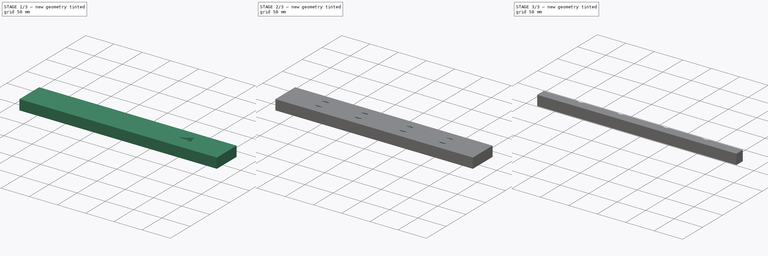
[diagram: build sequence overview — one tinted view per stage of 3, left to right]
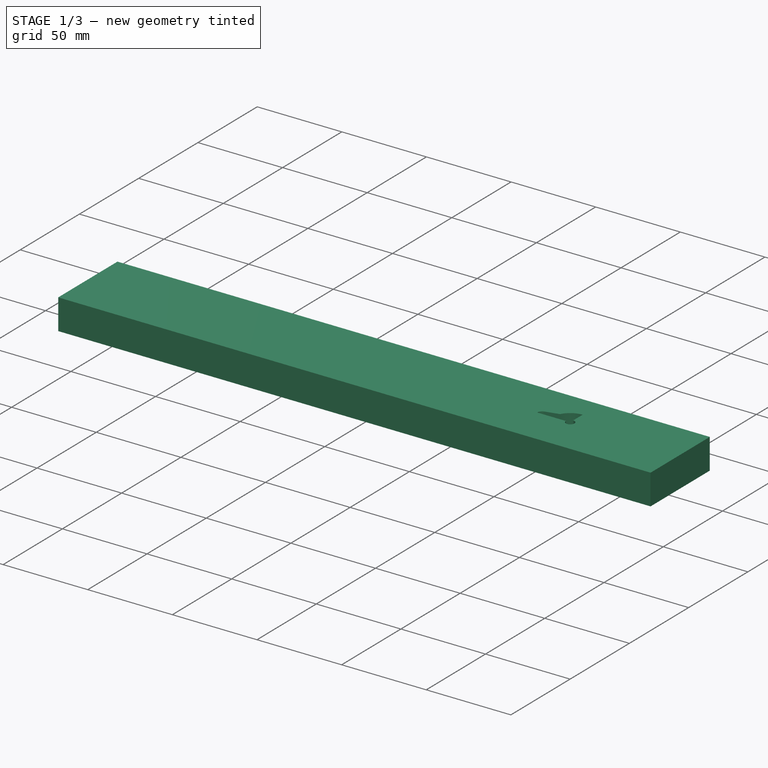
[diagram: stage 1 of 3 — iso view after this stage's code; geometry added in this stage tinted green]
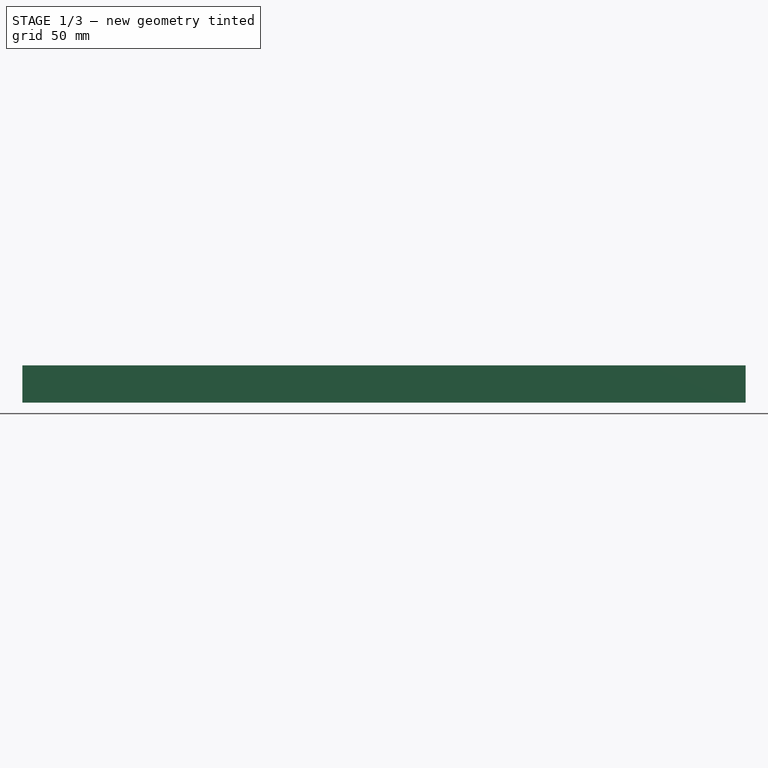
[diagram: stage 1 of 3 — front view after this stage's code; geometry added in this stage tinted green]
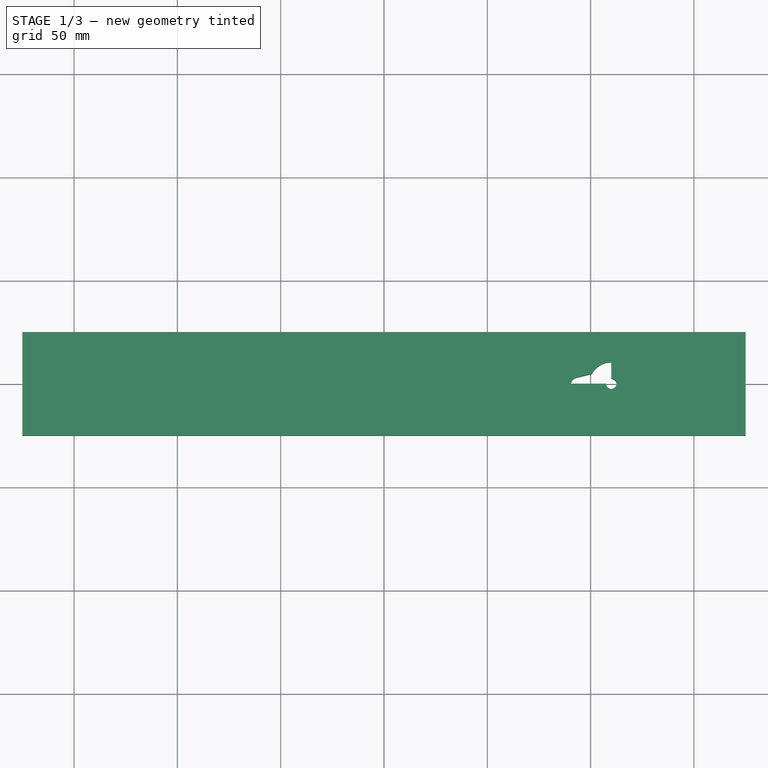
[diagram: stage 1 of 3 — top view after this stage's code; geometry added in this stage tinted green]
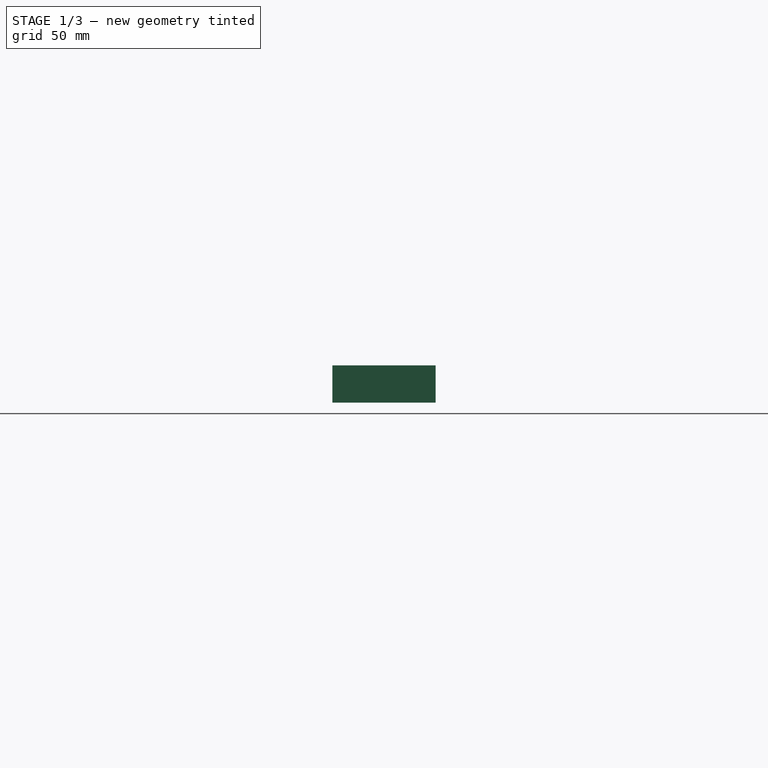
[diagram: stage 1 of 3 — right view after this stage's code; geometry added in this stage tinted green]
FCSTD DOCUMENT  (FreeCAD 0.21R31527 (Git))
Label: conductor3
License: All rights reserved
LicenseURL: http://en.wikipedia.org/wiki/All_rights_reserved
objects: PartDesign::Mirrored×7, PartDesign::CoordinateSystem×4, Sketcher::SketchObject×4, PartDesign::Plane×4, PartDesign::Pocket×4, App::DocumentObjectGroup×3, App::Link×3, PartDesign::SubShapeBinder×2, PartDesign::Pad×2, PartDesign::MultiTransform×2, PartDesign::Body×2, App::FeaturePython×1, App::Part×1, Spreadsheet::Sheet×1
note: 37 computed .brp shape members not serialized (recipe doc carries the construction recipe); baked Part::Feature solids carry a one-line shape summary decoded from their .brp
EXTERNAL_REF file=dropper.FCStd obj=Body
EXTERNAL_REF file=composit_full_size.FCStd obj=Spreadsheet002
EXTERNAL_REF file=composit_full_size.FCStd obj=Spreadsheet001

FEATURE [PartDesign::CoordinateSystem] LCS_Origin
  AttacherType = Attacher::AttachEngine3D
  MapMode = 2
  Support = -> [X_Axis]
FEATURE [App::DocumentObjectGroup] Constraints
FEATURE [App::FeaturePython] Variables  # WARN: FeaturePython — macro-defined, semantics opaque (R4)
  Type = App::PropertyContainer
FEATURE [App::DocumentObjectGroup] Configurations
FEATURE [PartDesign::CoordinateSystem] LCS_0
  AttacherType = Attacher::AttachEngine3D
  MapMode = 2
  Support = -> [X_Axis001]
FEATURE [PartDesign::SubShapeBinder] Binder
  BindCopyOnChange = 0
  BindMode = 0
  ClaimChildren = false
  Context = -> Body [Binder.]
  Fuse = false
  MakeFace = true
  OffsetFill = false
  OffsetIntersection = false
  OffsetJoinType = 0
  OffsetOpenResult = false
  PartialLoad = false
  Placement = pos=(110,-2.05e-14,2.05e-14) rot=(0,-1,0;3.14159rad)
  Relative = false
  Support = -> [<external dropper.FCStd>#Body[Pad.Sketch.]]
  _Version = 2
  expr: Placement = <<Sketch001>>.Placement
FEATURE [Sketcher::SketchObject] Sketch  label="Sketch_base_35mm"
  FullyConstrained = true
  MapMode = 5
  Support = -> [XY_Plane001]
  sketch-geometry (5):
    g0: LineSegment StartX=-175 StartY=-25 StartZ=0 EndX=-175 EndY=25 EndZ=0
    g1: LineSegment StartX=-175 StartY=25 StartZ=0 EndX=175 EndY=25 EndZ=0
    g2: LineSegment StartX=175 StartY=25 StartZ=0 EndX=175 EndY=-25 EndZ=0
    g3: LineSegment StartX=175 StartY=-25 StartZ=0 EndX=-175 EndY=-25 EndZ=0
    g4: GeomPoint X=0 Y=0 Z=0
  constraints (12):
    c: Coincident(g0,g1)
    c: Coincident(g1,g2)
    c: Coincident(g2,g3)
    c: Coincident(g3,g0)
    c: Horizontal(g1)
    c: Horizontal(g3)
    c: Vertical(g0)
    c: Vertical(g2)
    c: Symmetric(g1,g0,g4)
    c: Coincident(g4,g-1)
    c: DistanceX(g0,g1) = 350  'width'
    c: DistanceY(g2,g1) = 50  'length'
FEATURE [PartDesign::Plane] DatumPlane001
  AttachmentOffset = pos=(0,0,75) rot=(0,0,1;0rad)
  Length = 60
  MapMode = 5
  Placement = pos=(75,-1.67e-14,1.67e-14) rot=(0.57735,0.57735,0.57735;2.0944rad)
  ResizeMode = 0
  Support = -> [YZ_Plane001]
  Width = 60
  expr: .AttachmentOffset.Base.z = composit_full_size#<<main>>.modules_centres_dictance_x / 2
FEATURE [PartDesign::Plane] DatumPlane
  AttachmentOffset = pos=(0,0,35) rot=(0,0,1;0rad)
  Length = 60
  MapMode = 5
  Placement = pos=(110,-2.05e-14,2.05e-14) rot=(0.57735,0.57735,0.57735;2.0944rad)
  ResizeMode = 0
  Support = -> [DatumPlane001]
  Width = 60
  expr: .AttachmentOffset.Base.z = composit_full_size#<<dropper>>.distance_between_droppers2 / 2
FEATURE [Sketcher::SketchObject] Sketch001
  AttachmentOffset = pos=(0,0,0) rot=(0,0,1;-1.5708rad)
  FullyConstrained = true
  MapMode = 3
  Placement = pos=(110,-2.05e-14,2.05e-14) rot=(0,-1,0;3.14159rad)
  Support = -> [DatumPlane]
  sketch-geometry (1):
    g0: Circle CenterX=0 CenterY=0 CenterZ=0 NormalX=0 NormalY=0 NormalZ=1 AngleXU=0 Radius=2.5
  constraints (2):
    c: Coincident(g0,g-1)
    c: Diameter(g0) = 5
FEATURE [PartDesign::Pad] Pad
  Direction = (0,0,1)
  Length = 18
  Length2 = 10
  Profile = -> Sketch
  ReferenceAxis = -> Sketch [N_Axis]
  Type = 0
FEATURE [PartDesign::Pocket] Pocket
  BaseFeature = -> Pad
  Direction = (-1e-16,1e-16,1)
  Length = 5
  Length2 = 5
  Profile = -> Sketch001
  ReferenceAxis = -> Sketch001 [N_Axis]
  Type = 1
FEATURE [PartDesign::Pocket] Pocket001
  BaseFeature = -> Pocket
  Direction = (-1e-16,1e-16,1)
  Length = 5
  Length2 = 5
  Profile = -> Binder
  Type = 1
FEATURE [PartDesign::Body] Body001
  Group = -> [Sketch002,Pad001,DatumPlane002,DatumPlane003,Local_CS,Sketch003,Pocket002,Binder001,Pocket003,MultiTransform001,Mirrored004,Mirrored005,Mirrored006]
  Origin = -> Origin002
  Tip = -> MultiTransform001
FEATURE [App::DocumentObjectGroup] Parts
  Group = -> [Body,Body001]

RESOLVED EXTERNAL PARTS (link-assembly join: the EXTERNAL_REF files above that resolve inside this repo's crawl, each included once):
---- part composit_full_size.FCStd = doc fcstd_9694d161bcfa (149173 chars; too large to inline — full recipe in that document) ----
---- part dropper.FCStd = doc fcstd_03601a3bb068 ----
FCSTD DOCUMENT  (FreeCAD 1.1R38827 (Git))
Label: dropper
License: All rights reserved
LicenseURL: http://en.wikipedia.org/wiki/All_rights_reserved
objects: Sketcher::SketchObject×9, Part::FeaturePython×4, PartDesign::Revolution×3, PartDesign::Body×2, PartDesign::CoordinateSystem×1, Spreadsheet::Sheet×1, PartDesign::SubShapeBinder×1, PartDesign::Pad×1, PartDesign::Pocket×1, PartDesign::Groove×1, App::Part×1
note: 44 computed .brp shape members not serialized (recipe doc carries the construction recipe); baked Part::Feature solids carry a one-line shape summary decoded from their .brp

FEATURE [Sketcher::SketchObject] Sketch005
  ArcFitTolerance = 0
  AttachmentSupport = -> [YZ_Plane001]
  FullyConstrained = true
  MakeInternals = false
  MapMode = 5
  Placement = pos=(0,0,0) rot=(0.57735,0.57735,0.57735;2.0944rad)
  sketch-geometry (14):
    g0: LineSegment StartX=11.3 StartY=0 StartZ=0 EndX=11.3 EndY=1 EndZ=0
    g1: LineSegment StartX=11.3 StartY=1 StartZ=0 EndX=10.7 EndY=1 EndZ=0
    g2: LineSegment StartX=10.7 StartY=1 StartZ=0 EndX=10.7 EndY=9.9 EndZ=0
    g3: LineSegment StartX=10.7 StartY=9.9 StartZ=0 EndX=6.6 EndY=9.9 EndZ=0
    g4: LineSegment StartX=6.6 StartY=9.9 StartZ=0 EndX=6.6 EndY=3 EndZ=0
    g5: LineSegment StartX=6.6 StartY=3 StartZ=0 EndX=2.5 EndY=3 EndZ=0
    g6: LineSegment StartX=2.5 StartY=3 StartZ=0 EndX=2.5 EndY=20 EndZ=0
    g7: LineSegment StartX=2.5 StartY=20 StartZ=0 EndX=1.45 EndY=20 EndZ=0
    g8: LineSegment StartX=1.45 StartY=20 StartZ=0 EndX=1.45 EndY=2.5 EndZ=0
    g9: LineSegment StartX=1.45 StartY=2.5 StartZ=0 EndX=7 EndY=-0.6 EndZ=0
    g10: LineSegment StartX=7 StartY=-0.6 StartZ=0 EndX=7 EndY=8.85 EndZ=0
    g11: LineSegment StartX=7 StartY=8.85 StartZ=0 EndX=9.5 EndY=8.85 EndZ=0
    g12: LineSegment StartX=9.5 StartY=8.85 StartZ=0 EndX=9.5 EndY=0 EndZ=0
    g13: LineSegment StartX=9.5 StartY=0 StartZ=0 EndX=11.3 EndY=0 EndZ=0
  constraints (43):
    c: PointOnObject(g0,g-1)
    c: Vertical(g0)
    c: Coincident(g0,g1)
    c: Horizontal(g1)
    c: Coincident(g1,g2)
    c: Vertical(g2)
    c: Coincident(g2,g3)
    c: Horizontal(g3)
    c: Coincident(g3,g4)
    c: Vertical(g4)
    c: Coincident(g4,g5)
    c: Coincident(g5,g6)
    c: Vertical(g6)
    c: Coincident(g6,g7)
    c: Horizontal(g7)
    c: Coincident(g7,g8)
    c: Vertical(g8)
    c: Coincident(g8,g9)
    c: Coincident(g9,g10)
    c: Vertical(g10)
    c: Coincident(g10,g11)
    c: Horizontal(g11)
    c: Coincident(g11,g12)
    c: Vertical(g12)
    c: Coincident(g12,g13)
    c: Coincident(g13,g0)
    c: Horizontal(g13)
    c: DistanceX(g0) = 11.3  'outer_r'
    c: DistanceY(g0) = 1
    c: DistanceY(g2) = 9.9
    c: DistanceX(g1,g0) = 0.6
    c: DistanceX(g3,g2) = 4.1
    c: DistanceY(g4,g3) = 6.9
    c: DistanceX(g6) = 2.5
    c: DistanceX(g7) = 1.45
    c: DistanceY(g9,g3) = 10.5
    c: DistanceX(g12,g0) = 1.8
    c: DistanceY(g11) = 8.85
    c: DistanceX(g9) = 7
    c: DistanceY(g9,g6) = 20.6
    c: Horizontal(g5)
    c: DistanceY(g8,g5) = 0.5
    c: DistanceY(g7) = 20
FEATURE [PartDesign::Revolution] Revolution002
  Angle = 360
  Angle2 = 60
  Axis = (0,0,1)
  Base = (0,0,0)
  Placement = pos=(0,0,0) rot=(1,1,1;2.0944rad)
  Profile = -> Sketch005
  ReferenceAxis = -> Sketch005 [V_Axis]
  Reversed = true
  Suppressed = false
  Type = 0
FEATURE [Sketcher::SketchObject] Sketch006
  ArcFitTolerance = 0
  AttachmentSupport = -> [YZ_Plane001]
  FullyConstrained = true
  MakeInternals = false
  MapMode = 5
  Placement = pos=(0,0,0) rot=(0.57735,0.57735,0.57735;2.0944rad)
  expr: Constraints[27] = Sketch005.Constraints.outer_r
  expr: Constraints[28] = Sketch005.Constraints[28]
  expr: Constraints[29] = Sketch005.Constraints[29]
  expr: Constraints[30] = Sketch005.Constraints[30]
  expr: Constraints[31] = Sketch005.Constraints[31]
  expr: Constraints[32] = Sketch005.Constraints[32]
  expr: Constraints[33] = Sketch005.Constraints[33]
  expr: Constraints[34] = Sketch005.Constraints[34]
  expr: Constraints[35] = Sketch005.Constraints[35]
  expr: Constraints[36] = Sketch005.Constraints[36]
  expr: Constraints[37] = Sketch005.Constraints[37]
  expr: Constraints[38] = Sketch005.Constraints[38]
  expr: Constraints[39] = Sketch005.Constraints[39]
  expr: Constraints[41] = Sketch005.Constraints[41]
  expr: Constraints[69] = Sketch005.Constraints.outer_r
  expr: Constraints[70] = Sketch005.Constraints[28]
  expr: Constraints[71] = Sketch005.Constraints[29]
  expr: Constraints[72] = Sketch005.Constraints[30]
  expr: Constraints[73] = Sketch005.Constraints[31]
  expr: Constraints[74] = Sketch005.Constraints[32]
  expr: Constraints[75] = Sketch005.Constraints[33]
  expr: Constraints[76] = Sketch005.Constraints[34]
  expr: Constraints[77] = Sketch005.Constraints[35]
  expr: Constraints[78] = Sketch005.Constraints[36]
  expr: Constraints[79] = Sketch005.Constraints[37]
  expr: Constraints[80] = Sketch005.Constraints[38]
  expr: Constraints[81] = Sketch005.Constraints[39]
  expr: Constraints[83] = Sketch005.Constraints[41]
  sketch-geometry (32):
    g0: LineSegment [constr] StartX=11.3 StartY=0 StartZ=0 EndX=11.3 EndY=1 EndZ=0
    g1: LineSegment [constr] StartX=11.3 StartY=1 StartZ=0 EndX=10.7 EndY=1 EndZ=0
    g2: LineSegment [constr] StartX=10.7 StartY=1 StartZ=0 EndX=10.7 EndY=9.9 EndZ=0
    g3: LineSegment [constr] StartX=10.7 StartY=9.9 StartZ=0 EndX=6.6 EndY=9.9 EndZ=0
    g4: LineSegment StartX=6.6 StartY=9.9 StartZ=0 EndX=6.6 EndY=3 EndZ=0
    g5: LineSegment StartX=6.6 StartY=3 StartZ=0 EndX=2.5 EndY=3 EndZ=0
    g6: LineSegment [constr] StartX=2.5 StartY=3 StartZ=0 EndX=2.5 EndY=20 EndZ=0
    g7: LineSegment [constr] StartX=2.5 StartY=20 StartZ=0 EndX=1.45 EndY=20 EndZ=0
    g8: LineSegment [constr] StartX=1.45 StartY=20 StartZ=0 EndX=1.45 EndY=2.5 EndZ=0
    g9: LineSegment [constr] StartX=1.45 StartY=2.5 StartZ=0 EndX=7 EndY=-0.6 EndZ=0
    g10: LineSegment [constr] StartX=7 StartY=-0.6 StartZ=0 EndX=7 EndY=8.85 EndZ=0
    g11: LineSegment [constr] StartX=7 StartY=8.85 StartZ=0 EndX=9.5 EndY=8.85 EndZ=0
    g12: LineSegment [constr] StartX=9.5 StartY=8.85 StartZ=0 EndX=9.5 EndY=0 EndZ=0
    g13: LineSegment [constr] StartX=9.5 StartY=0 StartZ=0 EndX=11.3 EndY=0 EndZ=0
    g14: LineSegment [constr] StartX=11.3 StartY=0 StartZ=0 EndX=11.3 EndY=1 EndZ=0
    g15: LineSegment [constr] StartX=11.3 StartY=1 StartZ=0 EndX=10.7 EndY=1 EndZ=0
    g16: LineSegment [constr] StartX=10.7 StartY=1 StartZ=0 EndX=10.7 EndY=9.9 EndZ=0
    g17: LineSegment [constr] StartX=10.7 StartY=9.9 StartZ=0 EndX=6.6 EndY=9.9 EndZ=0
    g18: LineSegment [constr] StartX=6.6 StartY=9.9 StartZ=0 EndX=6.6 EndY=3 EndZ=0
    g19: LineSegment [constr] StartX=6.6 StartY=3 StartZ=0 EndX=2.5 EndY=3 EndZ=0
    g20: LineSegment [constr] StartX=2.5 StartY=3 StartZ=0 EndX=2.5 EndY=20 EndZ=0
    g21: LineSegment [constr] StartX=2.5 StartY=20 StartZ=0 EndX=1.45 EndY=20 EndZ=0
    g22: LineSegment [constr] StartX=1.45 StartY=20 StartZ=0 EndX=1.45 EndY=2.5 EndZ=0
    g23: LineSegment [constr] StartX=1.45 StartY=2.5 StartZ=0 EndX=7 EndY=-0.6 EndZ=0
    g24: LineSegment [constr] StartX=7 StartY=-0.6 StartZ=0 EndX=7 EndY=8.85 EndZ=0
    g25: LineSegment [constr] StartX=7 StartY=8.85 StartZ=0 EndX=9.5 EndY=8.85 EndZ=0
    g26: LineSegment [constr] StartX=9.5 StartY=8.85 StartZ=0 EndX=9.5 EndY=0 EndZ=0
    g27: LineSegment [constr] StartX=9.5 StartY=0 StartZ=0 EndX=11.3 EndY=0 EndZ=0
    g28: LineSegment StartX=2.5 StartY=3 StartZ=0 EndX=2.04763 EndY=3 EndZ=0
    g29: LineSegment StartX=2.04763 StartY=3 StartZ=0 EndX=2.04763 EndY=12.6758 EndZ=0
    g30: LineSegment StartX=2.04763 StartY=12.6758 StartZ=0 EndX=6.6 EndY=9.9 EndZ=0
    g31: GeomPoint [constr] X=2.5 Y=12.4 Z=0
  constraints (94):
    c: PointOnObject(g0,g-1)
    c: Vertical(g0)
    c: Coincident(g0,g1)
    c: Horizontal(g1)
    c: Coincident(g1,g2)
    c: Vertical(g2)
    c: Coincident(g2,g3)
    c: Horizontal(g3)
    c: Coincident(g3,g4)
    c: Vertical(g4)
    c: Coincident(g4,g5)
    c: Coincident(g5,g6)
    c: Vertical(g6)
    c: Coincident(g6,g7)
    c: Horizontal(g7)
    c: Coincident(g7,g8)
    c: Vertical(g8)
    c: Coincident(g8,g9)
    c: Coincident(g9,g10)
    c: Vertical(g10)
    c: Coincident(g10,g11)
    c: Horizontal(g11)
    c: Coincident(g11,g12)
    c: Vertical(g12)
    c: Coincident(g12,g13)
    c: Coincident(g13,g0)
    c: Horizontal(g13)
    c: DistanceX(g0) = 11.3
    c: DistanceY(g0) = 1
    c: DistanceY(g2) = 9.9
    c: DistanceX(g1,g0) = 0.6
    c: DistanceX(g3,g2) = 4.1
    c: DistanceY(g4,g3) = 6.9
    c: DistanceX(g6) = 2.5
    c: DistanceX(g7) = 1.45
    c: DistanceY(g9,g3) = 10.5
    c: DistanceX(g12,g0) = 1.8
    c: DistanceY(g11) = 8.85
    c: DistanceX(g9) = 7
    c: DistanceY(g9,g6) = 20.6
    c: Horizontal(g5)
    c: DistanceY(g8,g5) = 0.5
    c: PointOnObject(g14,g-1)
    c: Vertical(g14)
    c: Coincident(g14,g15)
    c: Horizontal(g15)
    c: Coincident(g15,g16)
    c: Vertical(g16)
    c: Coincident(g16,g17)
    c: Horizontal(g17)
    c: Coincident(g17,g18)
    c: Vertical(g18)
    c: Coincident(g18,g19)
    c: Coincident(g19,g20)
    c: Vertical(g20)
    c: Coincident(g20,g21)
    c: Horizontal(g21)
    c: Coincident(g21,g22)
    c: Vertical(g22)
    c: Coincident(g22,g23)
    c: Coincident(g23,g24)
    c: Vertical(g24)
    c: Coincident(g24,g25)
    c: Horizontal(g25)
    c: Coincident(g25,g26)
    c: Vertical(g26)
    c: Coincident(g26,g27)
    c: Coincident(g27,g14)
    c: Horizontal(g27)
    c: DistanceX(g14) = 11.3
    c: DistanceY(g14) = 1
    c: DistanceY(g16) = 9.9
    c: DistanceX(g15,g14) = 0.6
    c: DistanceX(g17,g16) = 4.1
    c: DistanceY(g18,g17) = 6.9
    c: DistanceX(g20) = 2.5
    c: DistanceX(g21) = 1.45
    c: DistanceY(g23,g17) = 10.5
    c: DistanceX(g26,g14) = 1.8
    c: DistanceY(g25) = 8.85
    c: DistanceX(g23) = 7
    c: DistanceY(g23,g20) = 20.6
    c: Horizontal(g19)
    c: DistanceY(g22,g19) = 0.5
    c: Coincident(g28,g5)
    c: Horizontal(g28)
    c: Coincident(g29,g28)
    c: Vertical(g29)
    c: Coincident(g30,g29)
    c: Coincident(g30,g4)
    c: PointOnObject(g31,g30)
    c: PointOnObject(g31,g6)
    c: DistanceY(g4,g31) = 2.5
    c: DistanceX(g29,g31) = 0.452366
FEATURE [PartDesign::Body] Body001
  AllowCompound = false
  Group = -> [Sketch005,Revolution002,Sketch006]
  Origin = -> Origin001
  Placement = pos=(0,0,2.5) rot=(0,0,1;0rad)
  Tip = -> Revolution002
FEATURE [Sketcher::SketchObject] Sketch007  label="base"
  ArcFitTolerance = 0
  FullyConstrained = true
  MakeInternals = false
  expr: .Constraints.r = Sketch005.Constraints.outer_r + 0.5 mm
  sketch-geometry (1):
    g0: Circle CenterX=0 CenterY=0 CenterZ=0 NormalX=0 NormalY=0 NormalZ=1 AngleXU=0 Radius=11.8
  constraints (2):
    c: Coincident(g0,g-1)
    c: Radius(g0) = 11.8  'r'
FEATURE [Sketcher::SketchObject] Sketch002
  ArcFitTolerance = 0
  AttachmentSupport = -> [YZ_Plane]
  FullyConstrained = true
  MakeInternals = false
  MapMode = 5
  Placement = pos=(0,0,0) rot=(0.57735,0.57735,0.57735;2.0944rad)
  expr: Constraints[18] = Sketch001.Constraints[18]
  expr: Constraints[19] = Sketch001.Constraints[19]
  expr: Constraints[20] = Sketch001.Constraints[20]
  expr: Constraints[21] = Sketch001.Constraints[21]
  expr: Constraints[22] = Sketch001.Constraints[22]
  expr: Constraints[23] = Sketch001.Constraints[23]
  expr: Constraints[24] = Sketch001.Constraints[24]
  expr: Constraints[25] = Sketch001.Constraints[25]
  expr: Constraints[27] = Sketch001.Constraints[27]
  sketch-geometry (13):
    g0: LineSegment [constr] StartX=1.15 StartY=0 StartZ=0 EndX=1.15 EndY=-18.1612 EndZ=0
    g1: LineSegment StartX=1.15 StartY=-18.1612 StartZ=0 EndX=2.765 EndY=-8.77 EndZ=0
    g2: LineSegment [constr] StartX=2.765 StartY=-8.77 StartZ=0 EndX=2.2 EndY=-8.77 EndZ=0
    g3: LineSegment [constr] StartX=2.2 StartY=-8.77 StartZ=0 EndX=2.2 EndY=-5.32 EndZ=0
    g4: LineSegment [constr] StartX=2.2 StartY=-5.32 StartZ=0 EndX=3.35 EndY=-5.32 EndZ=0
    g5: LineSegment [constr] StartX=3.35 StartY=-5.32 StartZ=0 EndX=3.35 EndY=-3.66 EndZ=0
    g6: LineSegment [constr] StartX=3.35 StartY=-3.66 StartZ=0 EndX=2.65 EndY=-3.66 EndZ=0
    g7: LineSegment [constr] StartX=2.65 StartY=-3.66 StartZ=0 EndX=2.65 EndY=0 EndZ=0
    g8: LineSegment [constr] StartX=2.65 StartY=0 StartZ=0 EndX=1.15 EndY=0 EndZ=0
    g9: GeomPoint [constr] X=-2.765 Y=-8.77 Z=0
    g10: GeomPoint [constr] X=-2.765 Y=-8.77 Z=0
    g11: LineSegment StartX=1.15 StartY=-18.1612 StartZ=0 EndX=-3.0574 EndY=-18.1612 EndZ=0
    g12: LineSegment StartX=-3.0574 StartY=-18.1612 StartZ=0 EndX=2.765 EndY=-8.77 EndZ=0
  constraints (34):
    c: PointOnObject(g0,g-1)
    c: Vertical(g0)
    c: Coincident(g0,g1)
    c: Coincident(g1,g2)
    c: Horizontal(g2)
    c: Coincident(g2,g3)
    c: Vertical(g3)
    c: Coincident(g3,g4)
    c: Horizontal(g4)
    c: Coincident(g4,g5)
    c: Vertical(g5)
    c: Coincident(g5,g6)
    c: Horizontal(g6)
    c: Coincident(g6,g7)
    c: PointOnObject(g7,g-1)
    c: Vertical(g7)
    c: Coincident(g7,g8)
    c: Coincident(g8,g0)
    c: DistanceY(g2,g3) = 3.45
    c: DistanceY(g4,g5) = 1.66
    c: DistanceY(g6,g7) = 3.66
    c: DistanceX(g2) = 2.2
    c: DistanceX(g4) = 3.35
    c: DistanceX(g0) = 1.15
    c: DistanceX(g7) = 2.65
    c: DistanceX(g1) = 2.765
    c: Symmetric(g9,g1,g-2)
    c: Distance(g9,g1) = 5.45
    c: Symmetric(g10,g1,g-2)
    c: Coincident(g11,g1)
    c: Horizontal(g11)
    c: Coincident(g12,g11)
    c: Coincident(g12,g1)
    c: Distance(g9,g12) = 4.7
FEATURE [Sketcher::SketchObject] Sketch001
  ArcFitTolerance = 0
  AttachmentSupport = -> [XZ_Plane]
  FullyConstrained = true
  MakeInternals = false
  MapMode = 5
  Placement = pos=(0,0,0) rot=(1,0,0;1.5708rad)
  sketch-geometry (10):
    g0: LineSegment StartX=1.15 StartY=0 StartZ=0 EndX=1.15 EndY=-18.1612 EndZ=0
    g1: LineSegment StartX=1.15 StartY=-18.1612 StartZ=0 EndX=2.765 EndY=-8.77 EndZ=0
    g2: LineSegment StartX=2.765 StartY=-8.77 StartZ=0 EndX=2.2 EndY=-8.77 EndZ=0
    g3: LineSegment StartX=2.2 StartY=-8.77 StartZ=0 EndX=2.2 EndY=-5.32 EndZ=0
    g4: LineSegment StartX=2.2 StartY=-5.32 StartZ=0 EndX=3.35 EndY=-5.32 EndZ=0
    g5: LineSegment StartX=3.35 StartY=-5.32 StartZ=0 EndX=3.35 EndY=-3.66 EndZ=0
    g6: LineSegment StartX=3.35 StartY=-3.66 StartZ=0 EndX=2.65 EndY=-3.66 EndZ=0
    g7: LineSegment StartX=2.65 StartY=-3.66 StartZ=0 EndX=2.65 EndY=0 EndZ=0
    g8: LineSegment StartX=2.65 StartY=0 StartZ=0 EndX=1.15 EndY=0 EndZ=0
    g9: GeomPoint [constr] X=-2.765 Y=-8.77 Z=0
  constraints (28):
    c: PointOnObject(g0,g-1)
    c: Vertical(g0)
    c: Coincident(g0,g1)
    c: Coincident(g1,g2)
    c: Horizontal(g2)
    c: Coincident(g2,g3)
    c: Vertical(g3)
    c: Coincident(g3,g4)
    c: Horizontal(g4)
    c: Coincident(g4,g5)
    c: Vertical(g5)
    c: Coincident(g5,g6)
    c: Horizontal(g6)
    c: Coincident(g6,g7)
    c: PointOnObject(g7,g-1)
    c: Vertical(g7)
    c: Coincident(g7,g8)
    c: Coincident(g8,g0)
    c: DistanceY(g2,g3) = 3.45
    c: DistanceY(g4,g5) = 1.66
    c: DistanceY(g6,g7) = 3.66
    c: DistanceX(g2) = 2.2
    c: DistanceX(g4) = 3.35
    c: DistanceX(g0) = 1.15
    c: DistanceX(g7) = 2.65
    c: DistanceX(g1) = 2.765
    c: Symmetric(g9,g1,g-2)
    c: Distance(g9,g1) = 5.45
FEATURE [Sketcher::SketchObject] Sketch  label="fix_sketch"
  ArcFitTolerance = 0
  AttachmentSupport = -> [XY_Plane]
  FullyConstrained = true
  MakeInternals = false
  MapMode = 5
  sketch-geometry (5):
    g0: ArcOfCircle CenterX=0 CenterY=0 CenterZ=0 NormalX=0 NormalY=0 NormalZ=1 AngleXU=0 Radius=10.5 StartAngle=0.496317 EndAngle=1.5708
    g1: ArcOfCircle CenterX=16.5 CenterY=0 CenterZ=0 NormalX=0 NormalY=0 NormalZ=1 AngleXU=0 Radius=3.25 StartAngle=0 EndAngle=1.34547
    g2: LineSegment StartX=17.2261 StartY=3.16784 StartZ=0 EndX=9.23309 EndY=5 EndZ=0
    g3: GeomPoint [constr] X=-19.75 Y=0 Z=0
    g4: GeomPoint [constr] X=0 Y=-10.5 Z=0
  constraints (14):
    c: PointOnObject(g0,g-2)
    c: PointOnObject(g1,g-1)
    c: PointOnObject(g1,g-1)
    c: Coincident(g2,g0)
    c: Tangent(g2,g1) = -1.5708
    c: Diameter(g0) = 21
    c: DistanceX(g1) = 19.75
    c: DistanceY(g0) = 5
    c: Diameter(g1) = 6.5
    c: Coincident(g0,g-1)
    c: Symmetric(g3,g1,g-2)
    c: DistanceX(g3,g1) = 39.5  'length'
    c: Symmetric(g4,g0,g-1)
    c: DistanceY(g4,g0) = 21  'width'
FEATURE [Sketcher::SketchObject] Sketch004
  ArcFitTolerance = 0
  AttachmentSupport = -> [YZ_Plane]
  FullyConstrained = true
  MakeInternals = false
  MapMode = 5
  Placement = pos=(0,0,0) rot=(0.57735,0.57735,0.57735;2.0944rad)
  expr: Constraints[3] = Sketch003.Constraints[9]
  sketch-geometry (6):
    g0: LineSegment StartX=7.75 StartY=10.9 StartZ=0 EndX=0 EndY=10.9 EndZ=0
    g1: LineSegment StartX=0 StartY=10.9 StartZ=0 EndX=0 EndY=1.5 EndZ=0
    g2: LineSegment StartX=0 StartY=1.5 StartZ=0 EndX=7.25 EndY=1.5 EndZ=0
    g3: LineSegment StartX=7.25 StartY=1.5 StartZ=0 EndX=7.25 EndY=2.5 EndZ=0
    g4: LineSegment StartX=7.25 StartY=2.5 StartZ=0 EndX=7.75 EndY=4 EndZ=0
    g5: LineSegment StartX=7.75 StartY=4 StartZ=0 EndX=7.75 EndY=10.9 EndZ=0
  constraints (18):
    c: Coincident(g0,g1)
    c: Horizontal(g0)
    c: Vertical(g1)
    c: DistanceY(g0) = 10.9
    c: Horizontal(g2)
    c: Coincident(g2,g3)
    c: Vertical(g3)
    c: Coincident(g3,g4)
    c: Coincident(g4,g5)
    c: Vertical(g5)
    c: Coincident(g0,g5)
    c: Coincident(g1,g2)
    c: DistanceY(g1,g0) = 9.4
    c: DistanceX(g0) = 7.75
    c: DistanceY(g2,g3) = 1
    c: DistanceY(g3,g4) = 1.5
    c: DistanceX(g2,g4) = 0.5
    c: Vertical(g1,g-1)
FEATURE [Sketcher::SketchObject] Sketch003
  ArcFitTolerance = 0
  AttachmentSupport = -> [YZ_Plane]
  FullyConstrained = true
  MakeInternals = false
  MapMode = 5
  Placement = pos=(0,0,0) rot=(0.57735,0.57735,0.57735;2.0944rad)
  sketch-geometry (4):
    g0: LineSegment StartX=0 StartY=0 StartZ=0 EndX=8.825 EndY=0 EndZ=0
    g1: LineSegment StartX=8.825 StartY=0 StartZ=0 EndX=8.825 EndY=10.9 EndZ=0
    g2: LineSegment StartX=8.825 StartY=10.9 StartZ=0 EndX=0 EndY=10.9 EndZ=0
    g3: LineSegment StartX=0 StartY=10.9 StartZ=0 EndX=0 EndY=0 EndZ=0
  constraints (11):
    c: Coincident(g0,g1)
    c: Coincident(g1,g2)
    c: Coincident(g2,g3)
    c: Coincident(g3,g0)
    c: Horizontal(g0)
    c: Horizontal(g2)
    c: Vertical(g1)
    c: Vertical(g3)
    c: Coincident(g0,g-1)
    c: DistanceY(g2) = 10.9
    c: DistanceX(g0) = 8.825
FEATURE [PartDesign::CoordinateSystem] LCS_0
  AttacherType = Attacher::AttachEngine3D
  AttachmentOffset = pos=(0,0,2.45) rot=(0,0,1;0rad)
  AttachmentSupport = -> [X_Axis002]
  MapMode = 2
  Placement = pos=(0,0,2.45) rot=(0,0,1;0rad)
FEATURE [Spreadsheet::Sheet] Spreadsheet  label="Properties"
  cells = B2(top_d)==22.6 mm; C2(bot_d)==21 mm; D2(top_height)==20 mm; E2(bot_base_height)==2.4 mm; F2(total_height)==22.4 mm; G2(total_width)==38.9 mm
FEATURE [Part::FeaturePython] Mirror  label="Mirror of Sketch"  # WARN: FeaturePython — macro-defined, semantics opaque (R4)
  ExposePlacement = false
  FlipX = true
  FlipY = false
  FlipZ = false
  MarkerShape = 1
  MarkerSize = 0
  NumElements = 0
  Object = -> Sketch
  ObjectTraversal = 0
  Type = lattice2Mirror.LatticeMirror
  isLattice = 0
FEATURE [Part::FeaturePython] Mirror001  label="Mirror001 of Mirror of Sketch"  # WARN: FeaturePython — macro-defined, semantics opaque (R4)
  ExposePlacement = false
  FlipX = false
  FlipY = true
  FlipZ = false
  MarkerShape = 1
  MarkerSize = 0
  NumElements = 0
  Object = -> Mirror
  ObjectTraversal = 0
  Type = lattice2Mirror.LatticeMirror
  isLattice = 0
FEATURE [Part::FeaturePython] Mirror002  label="Mirror002 of Mirror001 of Mirror of Sketch"  # WARN: FeaturePython — macro-defined, semantics opaque (R4)
  ExposePlacement = false
  FlipX = true
  FlipY = false
  FlipZ = false
  MarkerShape = 1
  MarkerSize = 0
  NumElements = 0
  Object = -> Mirror001
  ObjectTraversal = 0
  Type = lattice2Mirror.LatticeMirror
  isLattice = 0
FEATURE [PartDesign::SubShapeBinder] Binder
  BindCopyOnChange = 0
  BindMode = 0
  ClaimChildren = true
  Context = -> Part [Body.Binder.]
  Fuse = false
  MakeFace = true
  OffsetFill = false
  OffsetIntersection = false
  OffsetJoinType = 0
  OffsetOpenResult = false
  PartialLoad = false
  Relative = true
  Support = -> [Connect]
  _Version = 2
FEATURE [PartDesign::Pad] Pad
  Direction = (0,0,1)
  Length = 2.45
  Length2 = 10
  Profile = -> Binder
  Suppressed = false
  Type = 0
FEATURE [PartDesign::Revolution] Revolution
  Angle = 360
  Angle2 = 60
  Axis = (0,2e-16,1)
  Base = (0,0,0)
  BaseFeature = -> Pad
  Profile = -> Sketch001
  ReferenceAxis = -> Sketch001 [V_Axis]
  Reversed = true
  Suppressed = false
  Type = 0
FEATURE [PartDesign::Pocket] Pocket
  BaseFeature = -> Revolution
  Direction = (-1,0,0)
  Length = 5
  Length2 = 5
  Midplane = true
  Profile = -> Sketch002
  ReferenceAxis = -> Sketch002 [N_Axis]
  Suppressed = false
  Type = 1
FEATURE [PartDesign::Revolution] Revolution001
  Angle = 360
  Angle2 = 60
  Axis = (0,0,1)
  Base = (0,0,0)
  BaseFeature = -> Pocket
  Profile = -> Sketch003
  ReferenceAxis = -> Sketch003 [V_Axis]
  Reversed = true
  Suppressed = false
  Type = 0
FEATURE [PartDesign::Groove] Groove
  Angle = 360
  Angle2 = 60
  Axis = (0,0,1)
  Base = (0,0,0)
  BaseFeature = -> Revolution001
  Profile = -> Sketch004
  ReferenceAxis = -> Sketch004 [V_Axis]
  Suppressed = false
  Type = 0
FEATURE [Sketcher::SketchObject] Sketch008  label="feed"
  ArcFitTolerance = 0
  AttachmentSupport = -> [XY_Plane]
  FullyConstrained = true
  MakeInternals = false
  MapMode = 5
  sketch-geometry (1):
    g0: Circle CenterX=0 CenterY=0 CenterZ=0 NormalX=0 NormalY=0 NormalZ=1 AngleXU=0 Radius=4
  constraints (2):
    c: Coincident(g0,g-1)
    c: Diameter(g0) = 8
FEATURE [PartDesign::Body] Body
  AllowCompound = false
  Group = -> [Sketch,Pad,Sketch001,Revolution,Sketch002,Pocket,Sketch003,Sketch004,Revolution001,Groove,Sketch008,Binder]
  Origin = -> Origin
  Tip = -> Groove
FEATURE [App::Part] Part  label="dropper"
  Group = -> [LCS_0,Body001,Body]
  Origin = -> Origin002
FEATURE [Part::FeaturePython] Connect  label="fix"  # WARN: FeaturePython — macro-defined, semantics opaque (R4)
  Objects = -> [Sketch,Mirror002,Mirror001,Mirror]
  Tolerance = 0
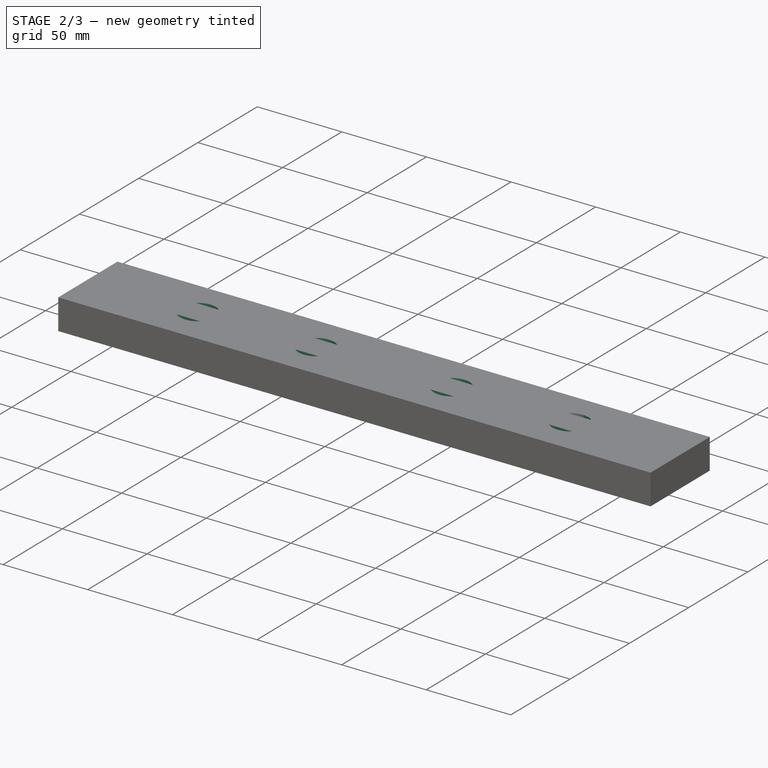
[diagram: stage 2 of 3 — iso view after this stage's code; geometry added in this stage tinted green]
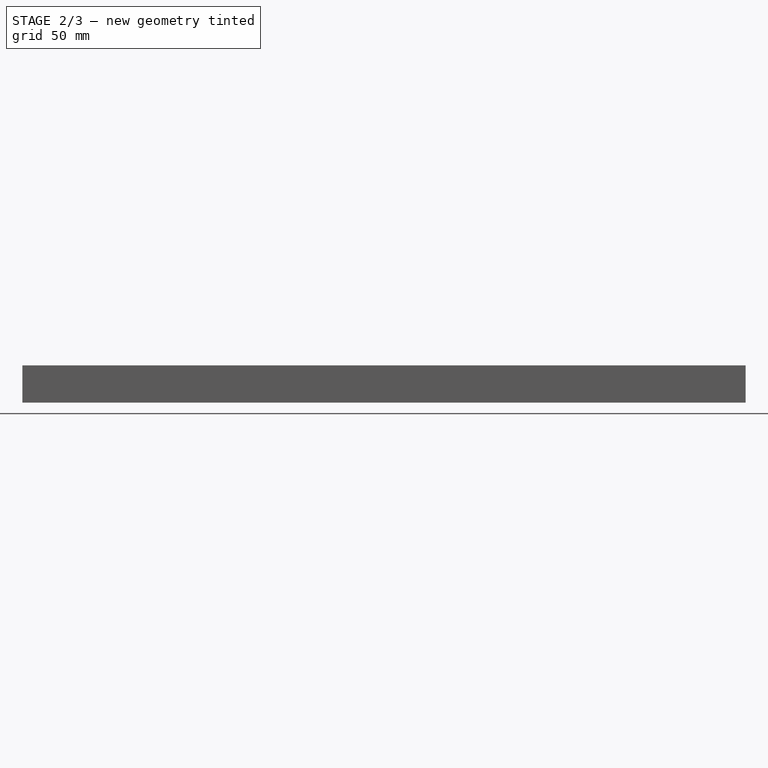
[diagram: stage 2 of 3 — front view after this stage's code; geometry added in this stage tinted green]
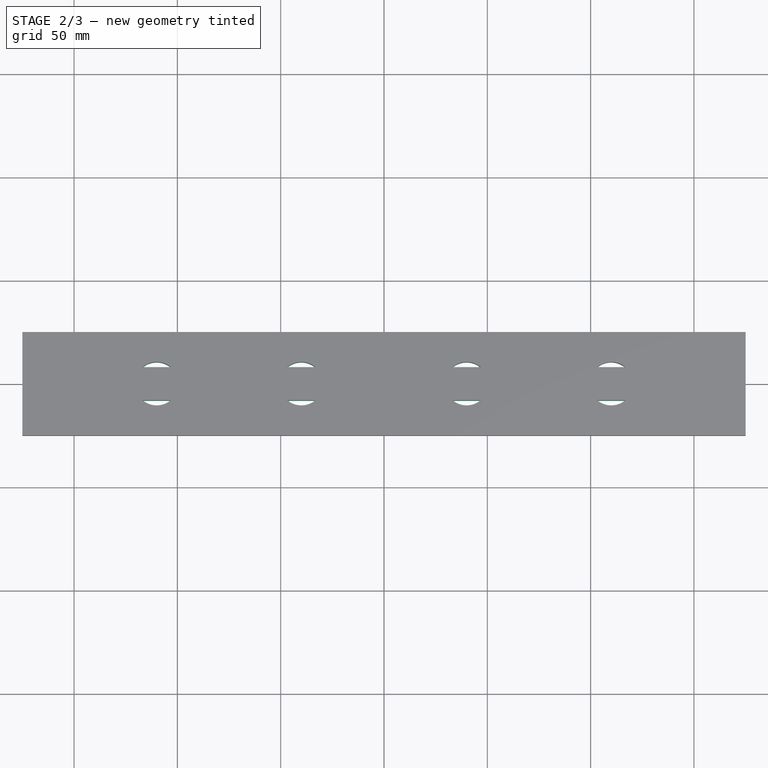
[diagram: stage 2 of 3 — top view after this stage's code; geometry added in this stage tinted green]
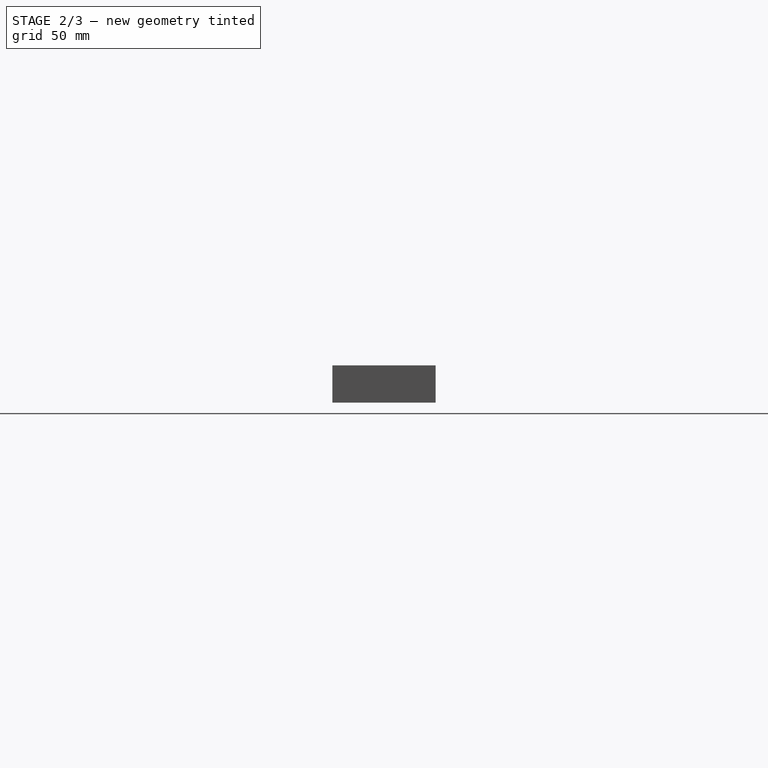
[diagram: stage 2 of 3 — right view after this stage's code; geometry added in this stage tinted green]
FEATURE [PartDesign::Mirrored] Mirrored
  MirrorPlane = -> Sketch001 [V_Axis]
FEATURE [PartDesign::Mirrored] Mirrored001
  MirrorPlane = -> XZ_Plane001
FEATURE [PartDesign::Mirrored] Mirrored002
  MirrorPlane = -> DatumPlane001
FEATURE [PartDesign::Mirrored] Mirrored003
  MirrorPlane = -> YZ_Plane001
FEATURE [PartDesign::MultiTransform] MultiTransform
  BaseFeature = -> Pocket001
  Originals = -> [Pocket,Pocket001]
  Transformations = -> [Mirrored,Mirrored001,Mirrored002,Mirrored003]
FEATURE [Sketcher::SketchObject] Sketch002
  FullyConstrained = true
  MapMode = 5
  Support = -> [XY_Plane002]
  expr: .Constraints.length = (<<Sketch_base_35mm>>.Constraints.length - Spreadsheet.tube_d) / 2
  sketch-geometry (5):
    g0: LineSegment StartX=-175 StartY=-8 StartZ=0 EndX=-175 EndY=8 EndZ=0
    g1: LineSegment StartX=-175 StartY=8 StartZ=0 EndX=175 EndY=8 EndZ=0
    g2: LineSegment StartX=175 StartY=8 StartZ=0 EndX=175 EndY=-8 EndZ=0
    g3: LineSegment StartX=175 StartY=-8 StartZ=0 EndX=-175 EndY=-8 EndZ=0
    g4: GeomPoint X=0 Y=0 Z=0
  constraints (12):
    c: Coincident(g0,g1)
    c: Coincident(g1,g2)
    c: Coincident(g2,g3)
    c: Coincident(g3,g0)
    c: Horizontal(g1)
    c: Horizontal(g3)
    c: Vertical(g0)
    c: Vertical(g2)
    c: Symmetric(g1,g0,g4)
    c: Coincident(g4,g-1)
    c: DistanceY(g2,g1) = 16  'length'
    c: DistanceX(g0,g1) = 350
FEATURE [PartDesign::Pad] Pad001
  Direction = (0,0,1)
  Length = 18
  Length2 = 10
  Profile = -> Sketch002
  ReferenceAxis = -> Sketch002 [N_Axis]
  Type = 0
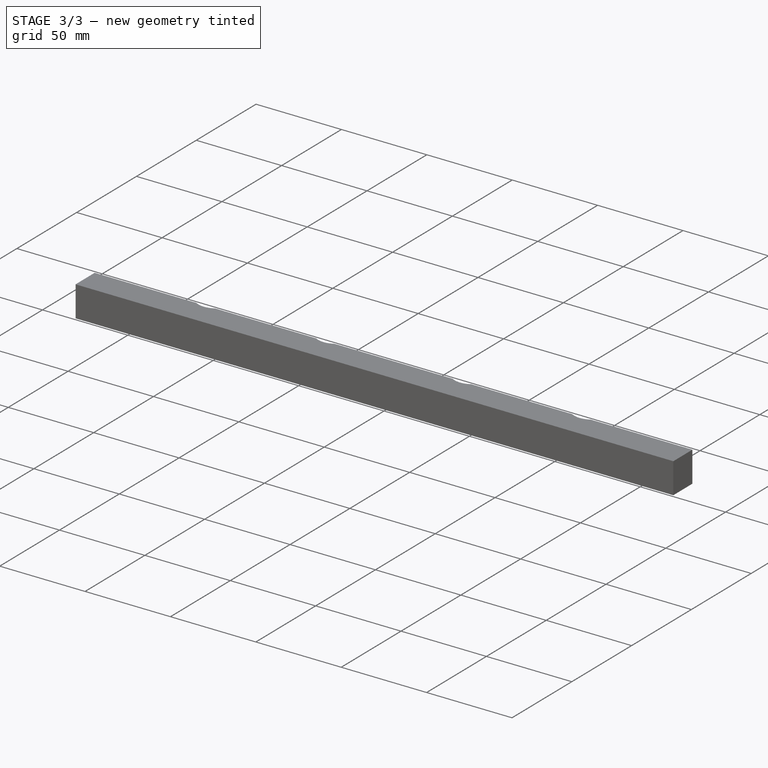
[diagram: stage 3 of 3 — iso view after this stage's code; geometry added in this stage tinted green]
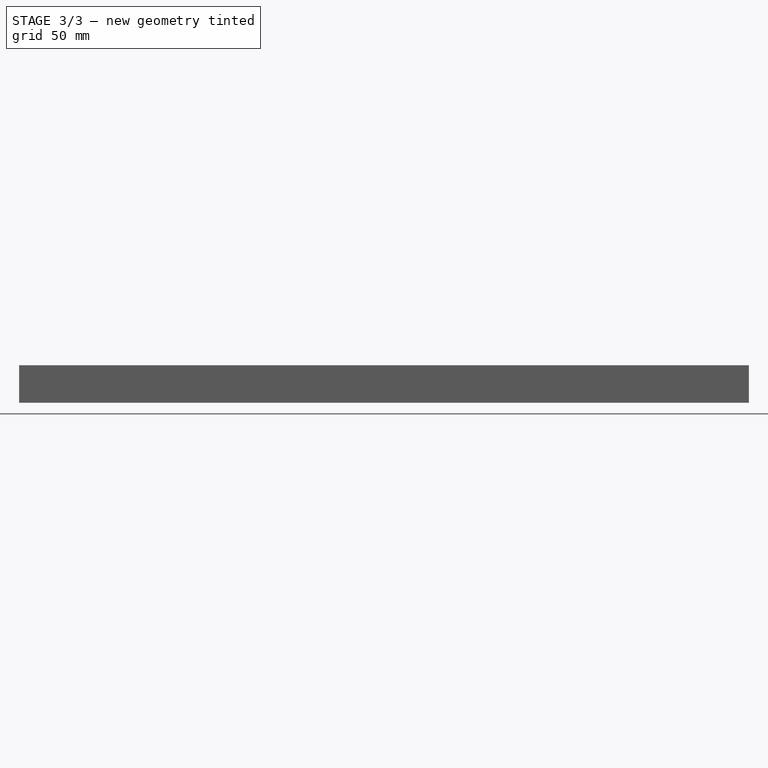
[diagram: stage 3 of 3 — front view after this stage's code; geometry added in this stage tinted green]
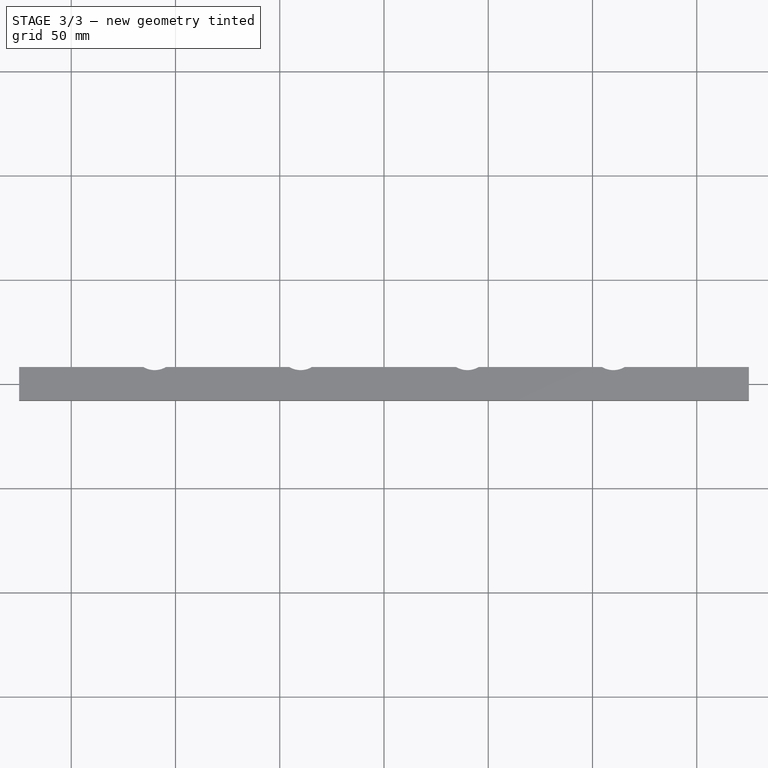
[diagram: stage 3 of 3 — top view after this stage's code; geometry added in this stage tinted green]
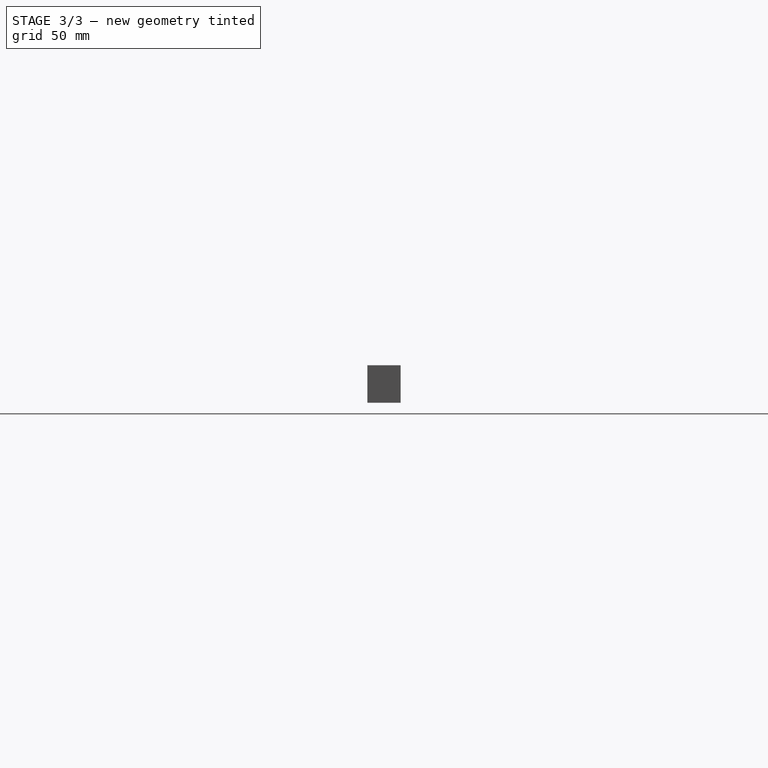
[diagram: stage 3 of 3 — right view after this stage's code; geometry added in this stage tinted green]
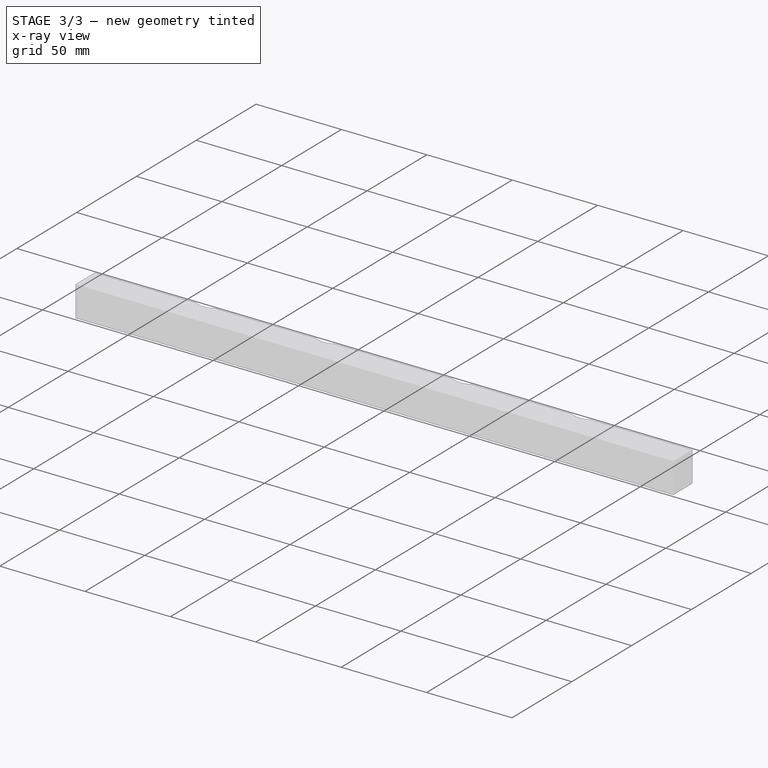
[diagram: stage 3 of 3 — x-ray composite at the iso view; earlier geometry ghosted, this stage's added geometry solid]
FEATURE [PartDesign::Plane] DatumPlane002
  AttachmentOffset = pos=(110,-2.05e-14,2.05e-14) rot=(0.57735,0.57735,0.57735;2.0944rad)
  Length = 60
  MapMode = 5
  Placement = pos=(110,-2.05e-14,2.05e-14) rot=(0.57735,0.57735,0.57735;2.0944rad)
  ResizeMode = 0
  Support = -> [XY_Plane002]
  Width = 60
  expr: AttachmentOffset = DatumPlane.Placement
FEATURE [PartDesign::Plane] DatumPlane003
  AttachmentOffset = pos=(75,-1.67e-14,1.67e-14) rot=(0.57735,0.57735,0.57735;2.0944rad)
  Length = 60
  MapMode = 5
  Placement = pos=(75,-1.67e-14,1.67e-14) rot=(0.57735,0.57735,0.57735;2.0944rad)
  ResizeMode = 0
  Support = -> [XY_Plane002]
  Width = 60
  expr: AttachmentOffset = DatumPlane001.Placement
FEATURE [PartDesign::CoordinateSystem] Local_CS
  AttacherType = Attacher::AttachEngine3D
  AttachmentOffset = pos=(0,8,0) rot=(0,0,1;0rad)
  MapMode = 5
  Placement = pos=(0,8,0) rot=(0,0,1;0rad)
  Support = -> [XY_Plane002]
  expr: .AttachmentOffset.Base.y = Sketch002.Constraints.length / 2
FEATURE [PartDesign::CoordinateSystem] Local_CS001
  AttacherType = Attacher::AttachEngine3D
  AttachmentOffset = pos=(0,0,18) rot=(0,0,1;0rad)
  MapMode = 5
  Placement = pos=(0,0,18) rot=(0,0,1;0rad)
  Support = -> [XY_Plane001]
  expr: .AttachmentOffset.Base.z = Pad.Length
FEATURE [PartDesign::Body] Body
  Group = -> [LCS_0,Binder,DatumPlane,Sketch,DatumPlane001,Sketch001,Pad,Pocket,Pocket001,MultiTransform,Mirrored,Mirrored001,Mirrored002,Mirrored003,Local_CS001]
  Origin = -> Origin001
  Tip = -> MultiTransform
FEATURE [App::Link] Body002
  AssemblyType = Part::Link
  AttachedBy = #LCS_0
  AttachedTo = Parent Assembly#LCS_Origin
  LinkedObject = -> Body
  SolverId = Asm4EE
  expr: Placement = LCS_Origin.Placement * AttachmentOffset * LCS_0.Placement ^ -1
FEATURE [App::Link] Body003
  AssemblyType = Part::Link
  AttachedBy = #Local_CS
  AttachedTo = Body002#Local_CS001
  AttachmentOffset = pos=(0,-9,0) rot=(0,0,1;0rad)
  LinkPlacement = pos=(0,-17,18) rot=(0,0,1;0rad)
  LinkedObject = -> Body001
  Placement = pos=(0,-17,18) rot=(0,0,1;0rad)
  SolverId = Asm4EE
  expr: .AttachmentOffset.Base.y = -Spreadsheet.tube_d / 2
  expr: Placement = Body002.Placement * Local_CS001.Placement * AttachmentOffset * Local_CS.Placement ^ -1
FEATURE [Sketcher::SketchObject] Sketch003
  AttachmentOffset = pos=(110,17,0) rot=(0,0,1;3.14159rad)
  FullyConstrained = true
  MapMode = 5
  Placement = pos=(110,17,0) rot=(0,0,1;3.14159rad)
  Support = -> [XY_Plane002]
  expr: .AttachmentOffset.Base.x = DatumPlane002.Placement.Base.x
  expr: .AttachmentOffset.Base.y = Sketch002.Constraints.length / 2 + Spreadsheet.tube_d / 2
  sketch-geometry (1):
    g0: Circle CenterX=0 CenterY=0 CenterZ=0 NormalX=0 NormalY=0 NormalZ=1 AngleXU=0 Radius=3
  constraints (2):
    c: Coincident(g0,g-1)
    c: Diameter(g0) = 6
FEATURE [PartDesign::Pocket] Pocket002
  BaseFeature = -> Pad001
  Direction = (0,0,-1)
  Length = 5
  Length2 = 5
  Midplane = true
  Profile = -> Sketch003
  ReferenceAxis = -> Sketch003 [N_Axis]
  Type = 1
FEATURE [App::Link] Body004
  AssemblyType = Part::Link
  AttachedBy = #Local_CS
  AttachedTo = Body002#Local_CS001
  AttachmentOffset = pos=(0,9,0) rot=(0,0,1;3.14159rad)
  LinkPlacement = pos=(1e-15,17,18) rot=(0,0,1;3.14159rad)
  LinkedObject = -> Body001
  Placement = pos=(1e-15,17,18) rot=(0,0,1;3.14159rad)
  SolverId = Asm4EE
  expr: .AttachmentOffset.Base.y = Spreadsheet.tube_d / 2
  expr: Placement = Body002.Placement * Local_CS001.Placement * AttachmentOffset * Local_CS.Placement ^ -1
FEATURE [App::Part] Model
  AssemblyType = Part::Link
  Group = -> [LCS_Origin,Constraints,Variables,Configurations,Body002,Body003,Body004]
  Origin = -> Origin
  Type = Assembly
FEATURE [Spreadsheet::Sheet] Spreadsheet
  cells = B2(tube_d)==18mm
FEATURE [PartDesign::SubShapeBinder] Binder001
  BindCopyOnChange = 0
  BindMode = 0
  ClaimChildren = false
  Context = -> Body001 [Binder001.]
  Fuse = false
  MakeFace = true
  OffsetFill = false
  OffsetIntersection = false
  OffsetJoinType = 0
  OffsetOpenResult = false
  PartialLoad = false
  Placement = pos=(110,17,0) rot=(0,0,1;3.14159rad)
  Relative = false
  Support = -> [Body[Binder.]]
  _Version = 2
  expr: Placement = Sketch003.Placement
FEATURE [PartDesign::Pocket] Pocket003
  BaseFeature = -> Pocket002
  Direction = (0,0,-1)
  Length = 5
  Length2 = 5
  Midplane = true
  Profile = -> Binder001
  Type = 1
FEATURE [PartDesign::Mirrored] Mirrored004
  MirrorPlane = -> DatumPlane002
FEATURE [PartDesign::Mirrored] Mirrored005
  MirrorPlane = -> DatumPlane003
FEATURE [PartDesign::Mirrored] Mirrored006
  MirrorPlane = -> YZ_Plane002
FEATURE [PartDesign::MultiTransform] MultiTransform001
  BaseFeature = -> Pocket003
  Originals = -> [Pocket003]
  Transformations = -> [Mirrored004,Mirrored005,Mirrored006]
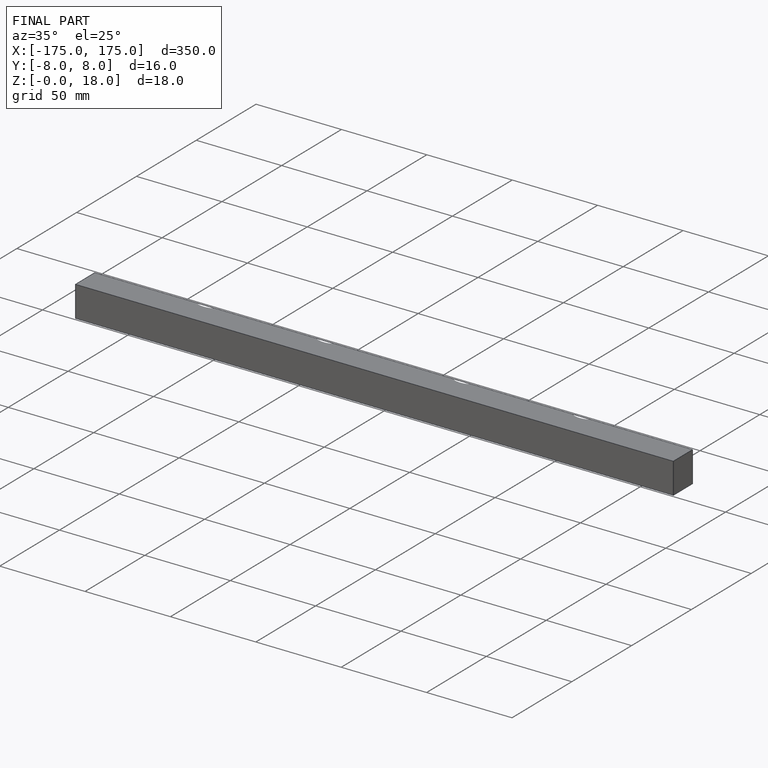
[diagram: finished part — iso view with bounding-box wireframe]
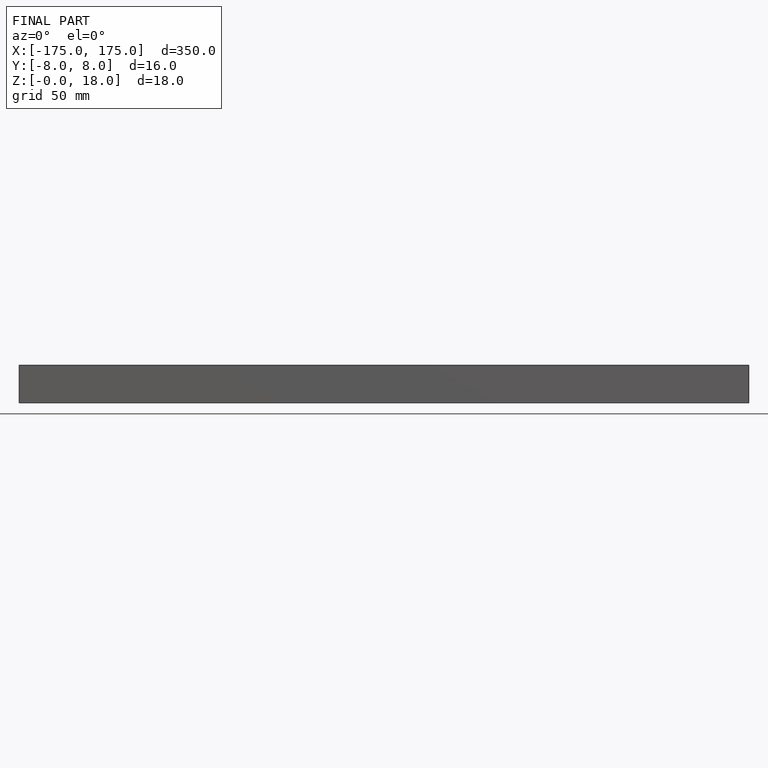
[diagram: finished part — front view with bounding-box wireframe]
